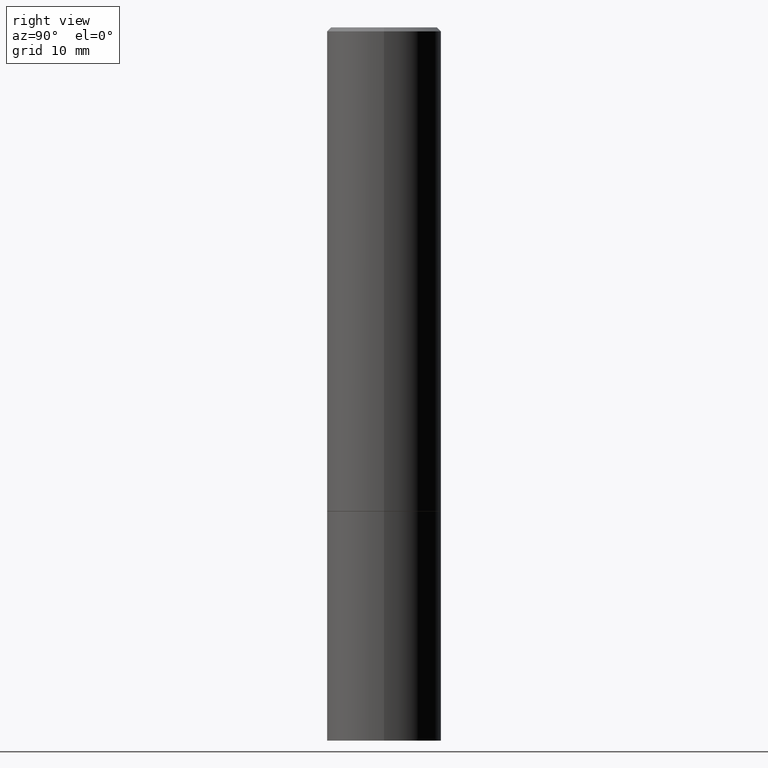
[diagram: clean part render]
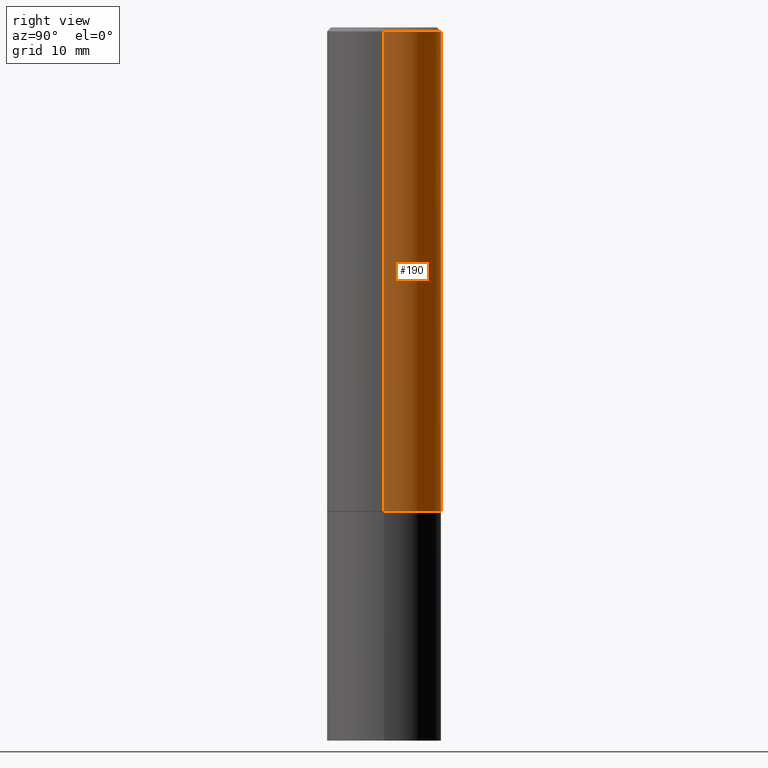
[diagram: same view with one face highlighted and labeled with its STEP entity id]
A machine part, right view. The second image highlights one B-rep face of the part: STEP entity #190.
In plain terms, the highlighted cylindrical surface (partial cylindrical patch) has radius 7.1437 mm, axis along (-0, 0, 1).
Its self-contained STEP definition (entity closure, byte-faithful):
#5 = CARTESIAN_POINT ( 'NONE',  ( -0.2812499999999998890, 1.998401444325280984E-15, -1.383450494134191708E-29 ) ) ;
#6 = VECTOR ( 'NONE', #116, 39.37007874015748143 ) ;
#21 = VECTOR ( 'NONE', #25, 39.37007874015748143 ) ;
#22 = DIRECTION ( 'NONE',  ( -2.445468806185136597E-29, 3.491481338843145583E-15, 1.000000000000000000 ) ) ;
#25 = DIRECTION ( 'NONE',  ( -2.445468806185136877E-29, 3.491481338843145188E-15, 1.000000000000000000 ) ) ;
#34 = DIRECTION ( 'NONE',  ( 1.000000000000000000, -6.982962677686268288E-15, 4.876176775795935793E-29 ) ) ;
#36 = AXIS2_PLACEMENT_3D ( 'NONE', #236, #347, #91 ) ;
#43 = VERTEX_POINT ( 'NONE', #220 ) ;
#54 = CARTESIAN_POINT ( 'NONE',  ( 5.805542945883512693E-29, -8.288776698413625533E-15, -2.373999999999999222 ) ) ;
#84 = CARTESIAN_POINT ( 'NONE',  ( -0.2812499999999997780, 1.894128626322398031E-15, -0.02000000000000006981 ) ) ;
#87 = CARTESIAN_POINT ( 'NONE',  ( 0.000000000000000000, 0.000000000000000000, 0.000000000000000000 ) ) ;
#91 = DIRECTION ( 'NONE',  ( 1.000000000000000000, -6.982962677686266711E-15, 0.000000000000000000 ) ) ;
#109 = VERTEX_POINT ( 'NONE', #225 ) ;
#116 = DIRECTION ( 'NONE',  ( -2.445468806185136877E-29, 3.491481338843145188E-15, 1.000000000000000000 ) ) ;
#129 = DIRECTION ( 'NONE',  ( 1.000000000000000000, -6.982962677686268288E-15, 0.000000000000000000 ) ) ;
#141 = CIRCLE ( 'NONE', #36, 0.2812499999999997780 ) ;
#147 = ORIENTED_EDGE ( 'NONE', *, *, #286, .F. ) ;
#153 = EDGE_CURVE ( 'NONE', #43, #109, #331, .T. ) ;
#162 = ORIENTED_EDGE ( 'NONE', *, *, #200, .T. ) ;
#163 = AXIS2_PLACEMENT_3D ( 'NONE', #87, #314, #34 ) ;
#170 = LINE ( 'NONE', #5, #6 ) ;
#171 = CARTESIAN_POINT ( 'NONE',  ( 0.2812499999999997780, -1.999344688650104578E-15, -0.02000000000000006981 ) ) ;
#188 = ORIENTED_EDGE ( 'NONE', *, *, #355, .F. ) ;
#190 = ADVANCED_FACE ( 'NONE', ( #289 ), #317, .T. ) ;
#191 = LINE ( 'NONE', #329, #21 ) ;
#200 = EDGE_CURVE ( 'NONE', #109, #252, #170, .T. ) ;
#220 = CARTESIAN_POINT ( 'NONE',  ( 0.2812500000000000555, -1.025273495151288883E-14, -2.373999999999999222 ) ) ;
#225 = CARTESIAN_POINT ( 'NONE',  ( -0.2812500000000000555, -2.180901718269960671E-15, -2.373999999999999222 ) ) ;
#233 = VERTEX_POINT ( 'NONE', #171 ) ;
#236 = CARTESIAN_POINT ( 'NONE',  ( 4.890937612370289799E-31, -6.982962677686315028E-17, -0.02000000000000006981 ) ) ;
#252 = VERTEX_POINT ( 'NONE', #84 ) ;
#286 = EDGE_CURVE ( 'NONE', #233, #252, #141, .T. ) ;
#287 = AXIS2_PLACEMENT_3D ( 'NONE', #54, #22, #129 ) ;
#289 = FACE_OUTER_BOUND ( 'NONE', #325, .T. ) ;
#314 = DIRECTION ( 'NONE',  ( -2.445468806185136597E-29, 3.491481338843145583E-15, 1.000000000000000000 ) ) ;
#317 = CYLINDRICAL_SURFACE ( 'NONE', #163, 0.2812499999999998890 ) ;
#325 = EDGE_LOOP ( 'NONE', ( #356, #162, #147, #188 ) ) ;
#329 = CARTESIAN_POINT ( 'NONE',  ( 0.2812499999999998890, -1.963958253099262118E-15, 1.371424718192606451E-29 ) ) ;
#331 = CIRCLE ( 'NONE', #287, 0.2812500000000000555 ) ;
#347 = DIRECTION ( 'NONE',  ( -2.445468806185136597E-29, 3.491481338843145583E-15, 1.000000000000000000 ) ) ;
#355 = EDGE_CURVE ( 'NONE', #43, #233, #191, .T. ) ;
#356 = ORIENTED_EDGE ( 'NONE', *, *, #153, .T. ) ;